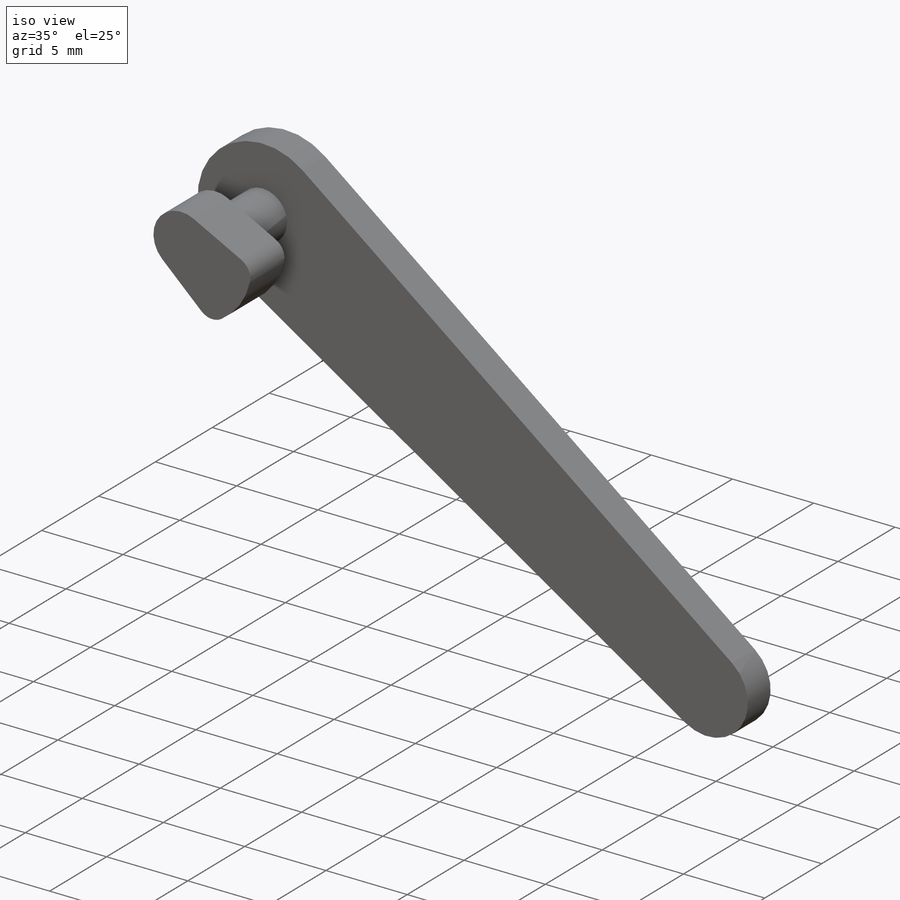
[diagram: iso view]
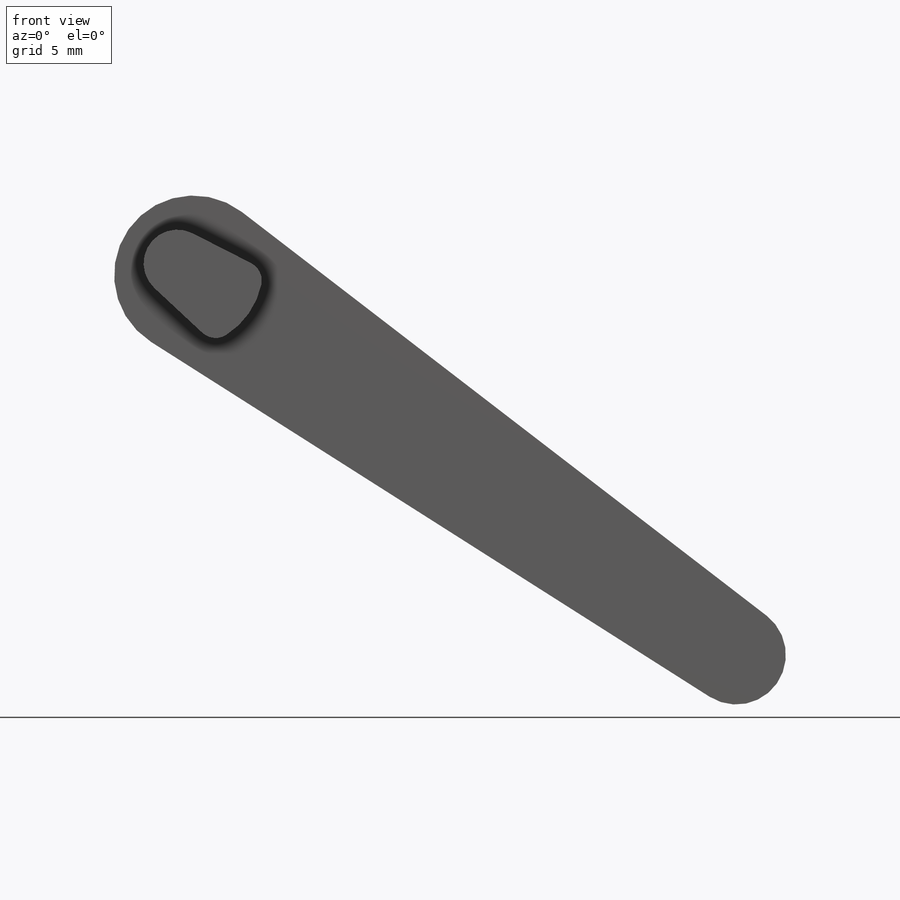
[diagram: front view]
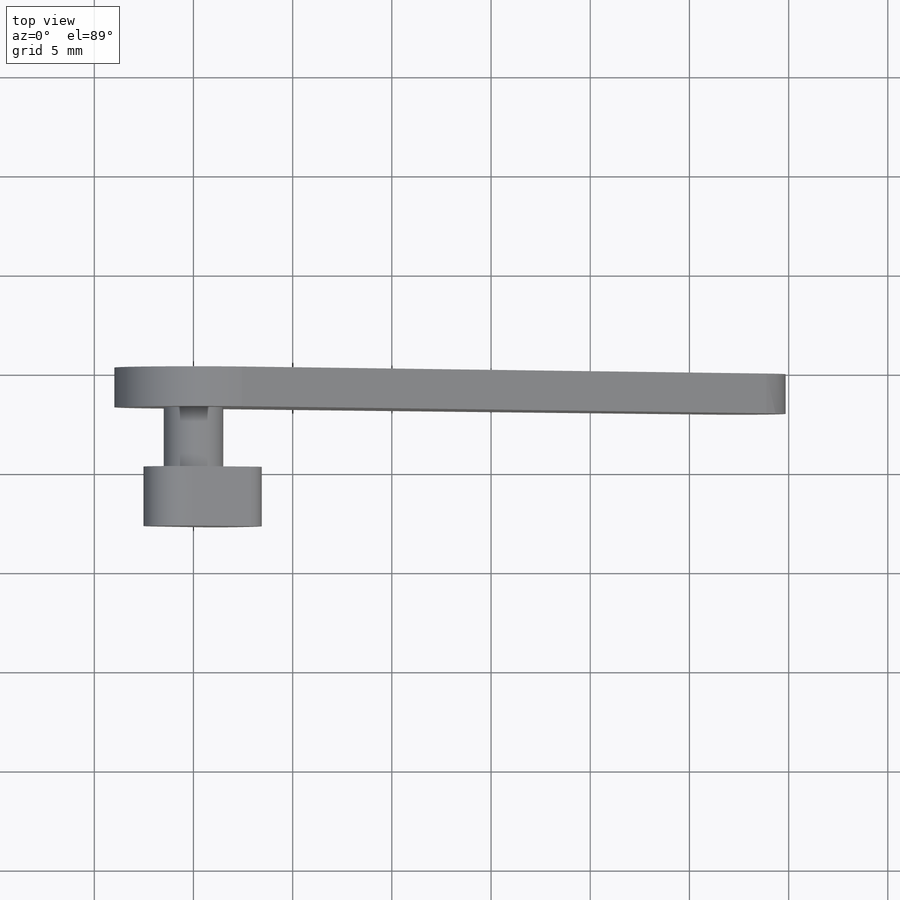
[diagram: top view]
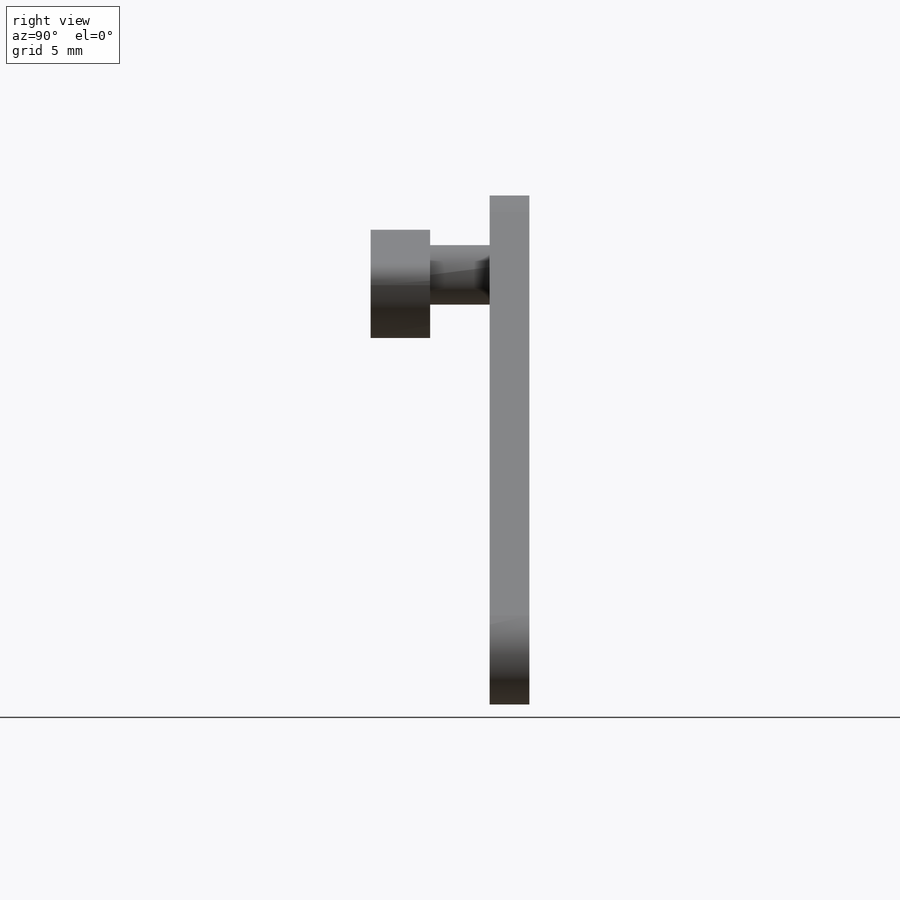
[diagram: right view]
SOLIDWORKS PART (.sldprt)
format: sldprt  version: not decoded by parser v0  size: 196,608 bytes
history: native  units: mm
features: plane x3, sketch x3, extrude x3, material x1 (+10 scaffold rows collapsed)
feature tree (20):
  scaffold x10  (default folders/planes/origin — collapsed)
  material  "材质 <未指定>"
  plane  "前视基准面"
  plane  "上视基准面"
  plane  "右视基准面"
  sketch  "草图1"  dims[D4=4.0mm D5=1.0mm D7=3.0mm D8=1.7mm D1=35.0deg D2=2.0mm D3=8.0deg D6=3.3mm]
  extrude  "凸台-拉伸1"  Depth=3mm
  extrude  "凸台-拉伸2"  [1 undecoded]
  sketch  "草图1<3>"  dims[D1=3.0mm]
  sketch  "草图2"  dims[D1=8.0mm D2=2.5mm D3=30.0mm]
  extrude  "凸台-拉伸3"  Depth=2mm
decode coverage: 5 of 6 modeling features carry decoded parameters
note: 1 parameter value undecoded
note: suppression state not decoded; provenance and decode notes live in map.json
